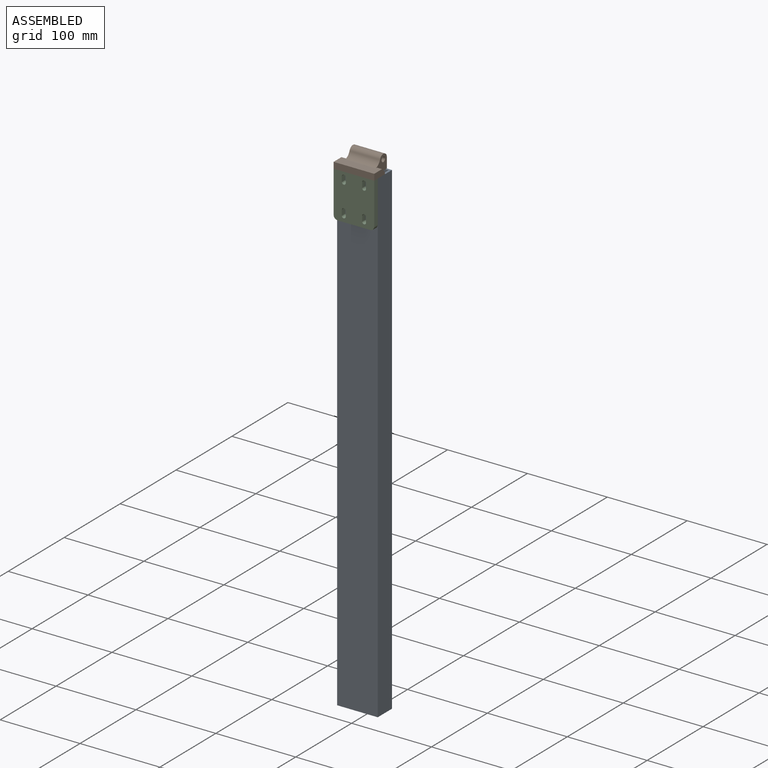
[diagram: assembled view]
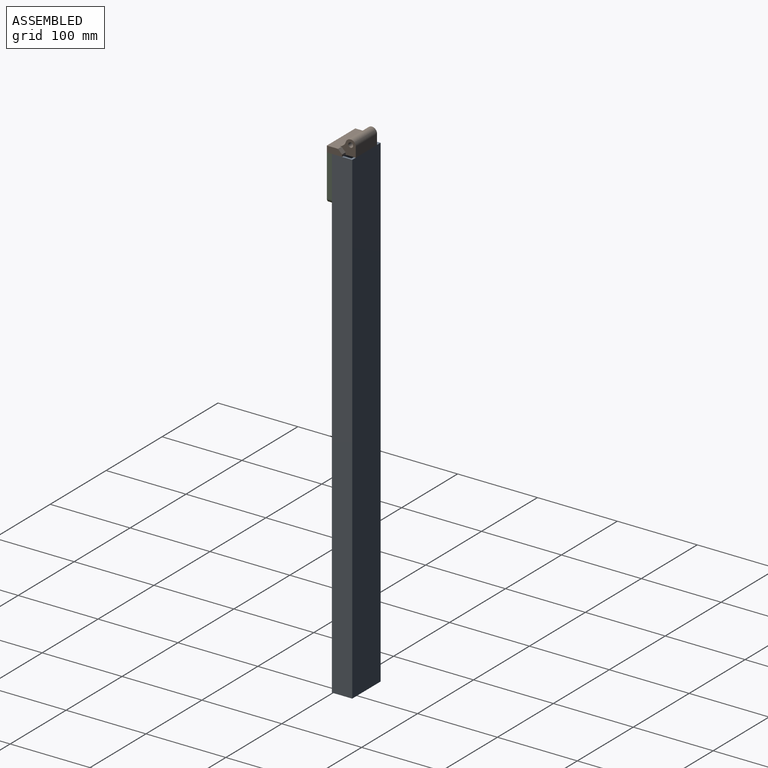
[diagram: assembled view, second angle]
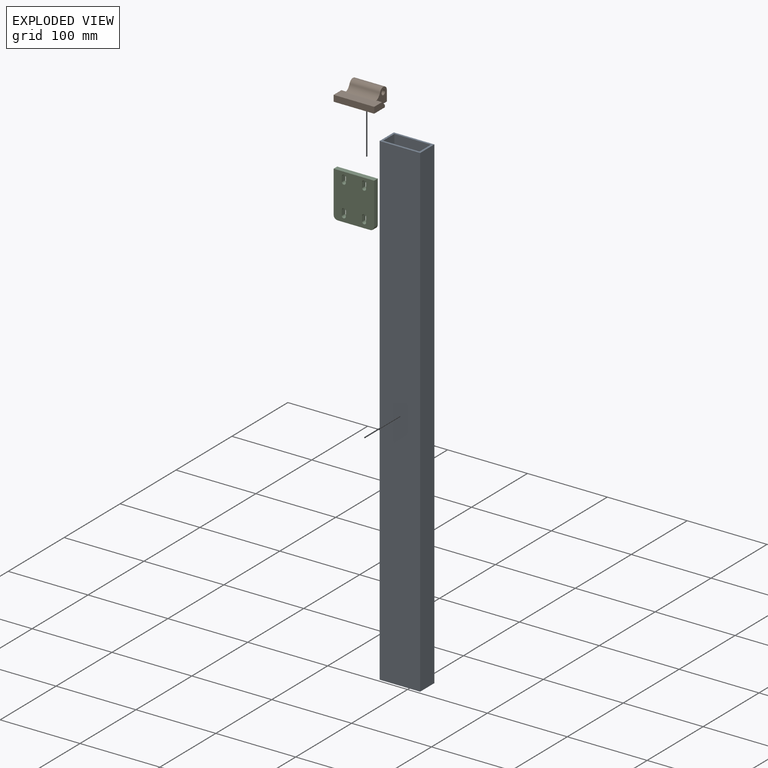
[diagram: exploded view]
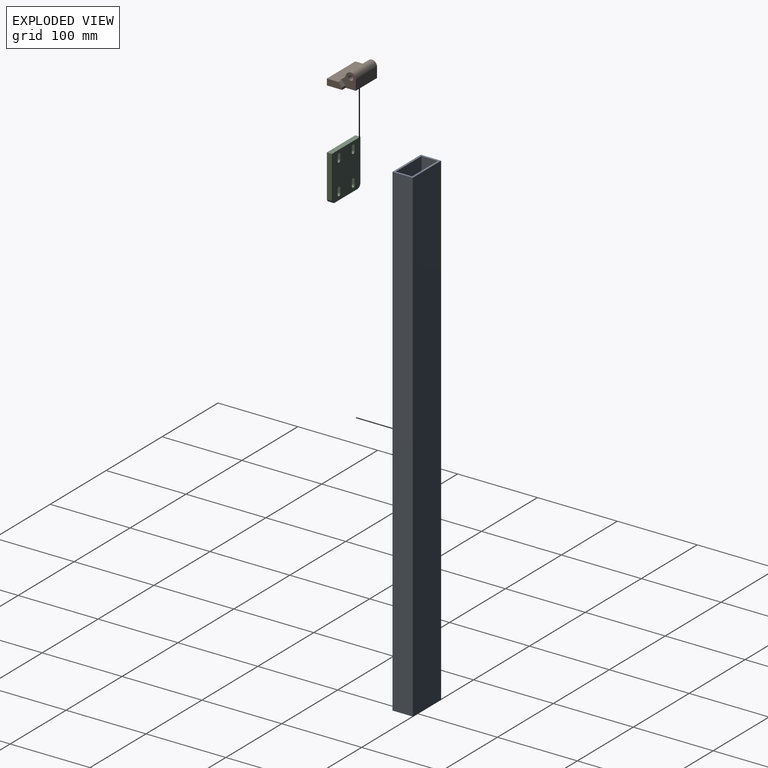
[diagram: exploded view, second angle]
ASSEMBLY  parts=3 mates=2
PART A: 10 faces, bbox 25.4x609.6x50.8 mm
  f0: plane 50.8x25.4mm, normal (0,-1,0), area 361.3mm2, adj f2,f3,f4,f5,f6,f7,f8,f9
  f1: plane 50.8x25.4mm, normal (0,1,0), area 361.3mm2, adj f2,f3,f4,f5,f6,f7,f8,f9
  f2: plane 609.6x25.4mm, normal (0,0,1), area 15483.8mm2, adj f0,f1,f3,f5
  f3: plane 609.6x50.8mm, normal (-1,0,0), area 30967.7mm2, adj f0,f1,f2,f4
  f4: plane 609.6x25.4mm, normal (0,0,-1), area 15483.8mm2, adj f0,f1,f3,f5
  f5: plane 609.6x50.8mm, normal (1,0,0), area 30967.7mm2, adj f0,f1,f2,f4
  f6: plane 609.6x20.32mm, normal (0,0,-1), area 12387.1mm2, adj f0,f1,f7,f9
  f7: plane 609.6x45.72mm, normal (1,0,0), area 27870.9mm2, adj f0,f1,f6,f8
  f8: plane 609.6x20.32mm, normal (0,0,1), area 12387.1mm2, adj f0,f1,f7,f9
  f9: plane 609.6x45.72mm, normal (-1,0,0), area 27870.9mm2, adj f0,f1,f6,f8
PART B: 15 faces, bbox 31.8x19.1x50.8 mm
  f0: plane 50.8x13.97mm, normal (0,1,0), area 612.9mm2, adj f1,f2,f3,f7,f9,f10,f13,f14
  f1: plane 19.05x7.77mm, normal (0,0,-1), area 135.1mm2, adj f0,f4,f10,f11,f14
  f2: plane 19.05x7.77mm, normal (0,0,1), area 135.1mm2, adj f0,f4,f10,f12,f13
  f3: plane 20.32x19.05mm, normal (0,0,-1), area 223.3mm2, adj f0,f4,f5,f6,f8,f9,f11,f14
  f4: plane 50.8x31.75mm, normal (0,-1,0), area 1451.6mm2, adj f1,f2,f3,f5,f7,f10,f11,f12
  f5: plane 38.1x12.7mm, normal (-1,0,0), area 483.9mm2, adj f3,f4,f6,f7
  f6: cylinder r=6.35mm len=38.1mm, axis (0,0,1), area 684.4mm2, adj f3,f5,f7,f9
  f7: plane 20.32x19.05mm, normal (0,0,1), area 223.3mm2, adj f0,f4,f5,f6,f8,f9,f12,f13
  f8: cylinder r=3.05mm len=38.1mm, axis (0,0,1), area 729.7mm2, adj f3,f7
  f9: cylinder r=10.16mm len=38.1mm, axis (0,0,1), area 420.4mm2, adj f0,f3,f6,f7
  f10: plane 50.8x7.77mm, normal (1,0,0), area 394.7mm2, adj f0,f1,f2,f4
  f11: plane 6.35x2.69mm, normal (-1,0,0), area 17.1mm2, adj f1,f3,f4,f14
  f12: plane 6.35x2.69mm, normal (-1,0,0), area 17.1mm2, adj f2,f4,f7,f13
  f13: plane 6.35x5.08mm, normal (-0.71,0.71,0), area 45.6mm2, adj f0,f2,f7,f12
  f14: plane 6.35x5.08mm, normal (-0.71,0.71,0), area 45.6mm2, adj f0,f1,f3,f11
PART C: 24 faces, bbox 57.2x6.4x50.8 mm
  f0: plane 6.54x6.35mm, normal (0,0,1), area 41.5mm2, adj f1,f3,f16,f23
  f1: cylinder r=2.49mm len=6.35mm, axis (0,1,0), area 47.4mm2, adj f0,f2,f16,f23
  f2: plane 6.51x6.35mm, normal (0,0,-1), area 41.3mm2, adj f1,f3,f16,f23
  f3: cylinder r=2.49mm len=6.35mm, axis (0,1,0), area 49.7mm2, adj f0,f2,f16,f23
  f4: plane 6.54x6.35mm, normal (0,0,1), area 41.5mm2, adj f5,f7,f16,f23
  f5: cylinder r=2.49mm len=6.35mm, axis (0,1,0), area 47.4mm2, adj f4,f6,f16,f23
  f6: plane 6.51x6.35mm, normal (0,0,-1), area 41.3mm2, adj f5,f7,f16,f23
  f7: cylinder r=2.49mm len=6.35mm, axis (0,1,0), area 49.7mm2, adj f4,f6,f16,f23
  f8: plane 6.54x6.35mm, normal (0,0,1), area 41.5mm2, adj f9,f11,f16,f23
  f9: cylinder r=2.49mm len=6.35mm, axis (0,1,0), area 47.4mm2, adj f8,f10,f16,f23
  f10: plane 6.51x6.35mm, normal (0,0,-1), area 41.3mm2, adj f9,f11,f16,f23
  f11: cylinder r=2.49mm len=6.35mm, axis (0,1,0), area 49.7mm2, adj f8,f10,f16,f23
  f12: plane 6.54x6.35mm, normal (0,0,1), area 41.5mm2, adj f13,f15,f16,f23
  f13: cylinder r=2.49mm len=6.35mm, axis (0,1,0), area 47.4mm2, adj f12,f14,f16,f23
  f14: plane 6.51x6.35mm, normal (0,0,-1), area 41.3mm2, adj f13,f15,f16,f23
  f15: cylinder r=2.49mm len=6.35mm, axis (0,1,0), area 49.7mm2, adj f12,f14,f16,f23
  f16: plane 57.15x50.8mm, normal (0,1,0), area 2688mm2, adj f0,f1,f2,f3,f4,f5,f6,f7
  f17: plane 40.64x6.35mm, normal (1,0,0), area 258.1mm2, adj f16,f21,f22,f23
  f18: plane 52.07x6.35mm, normal (0,0,-1), area 330.6mm2, adj f16,f20,f22,f23
  f19: plane 52.07x6.35mm, normal (0,0,1), area 330.6mm2, adj f16,f20,f21,f23
  f20: plane 50.8x6.35mm, normal (-1,0,0), area 322.6mm2, adj f16,f18,f19,f23
  f21: cylinder r=5.08mm len=6.35mm, axis (0,-1,0), area 50.7mm2, adj f16,f17,f19,f23
  f22: cylinder r=5.08mm len=6.35mm, axis (0,1,0), area 50.7mm2, adj f16,f17,f18,f23
  f23: plane 57.15x50.8mm, normal (0,-1,0), area 2688mm2, adj f0,f1,f2,f3,f4,f5,f6,f7
PLACE A rot(axis=(-0.58,0.58,-0.58),120deg) t=(-0.03,23.28,-577.85)mm
PLACE B rot(axis=(0.58,-0.58,-0.58),120deg) t=(-25.43,-3.87,45.87)mm
PLACE C rot(axis=(0,1,0),90deg) t=(25.37,17.08,17.3)mm fixed
MATE fastened B.f4 <-> C.f20  axis (0,0,-1) through (-0.03,4.23,31.75)mm
MATE fastened C.f16 <-> A.f5  axis (0,1,0) through (-0.03,10.58,31.75)mm
